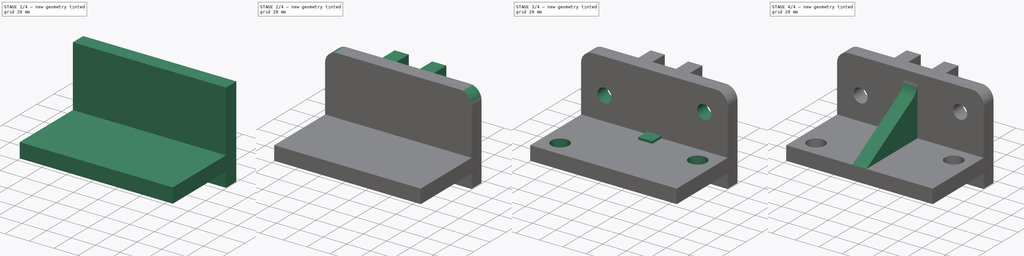
[diagram: build sequence overview — one tinted view per stage of 4, left to right]
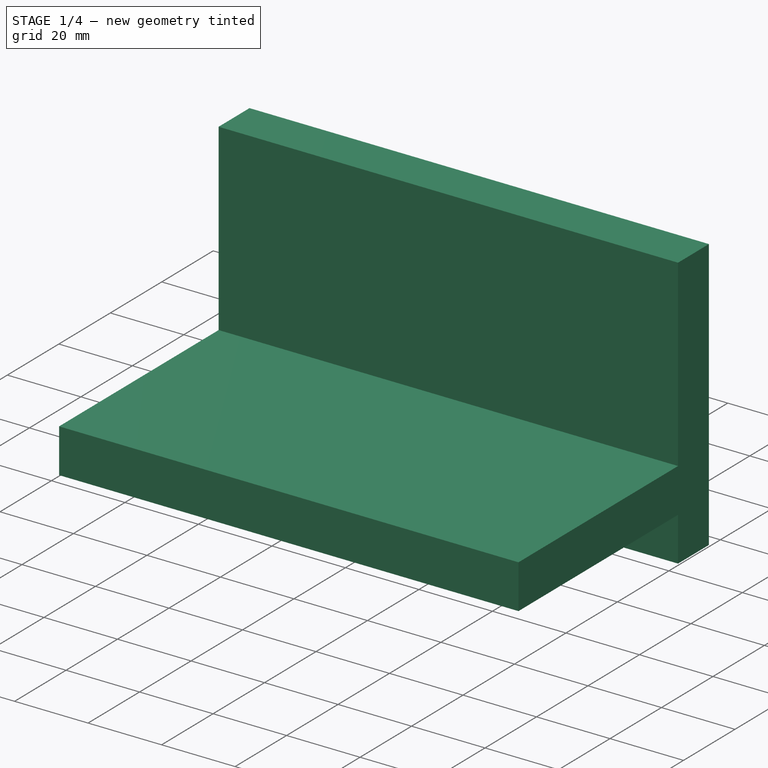
[diagram: stage 1 of 4 — iso view after this stage's code; geometry added in this stage tinted green]
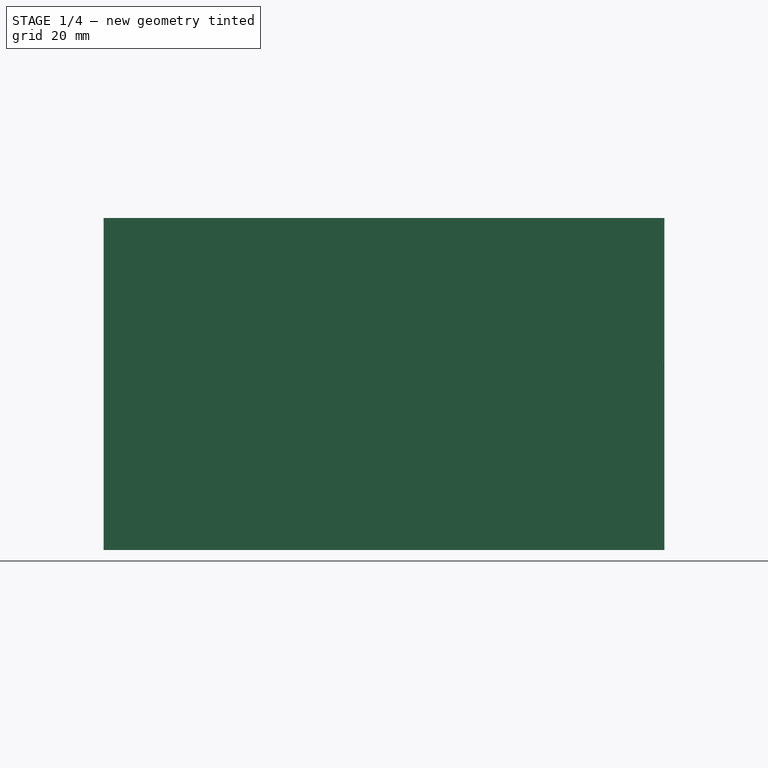
[diagram: stage 1 of 4 — front view after this stage's code; geometry added in this stage tinted green]
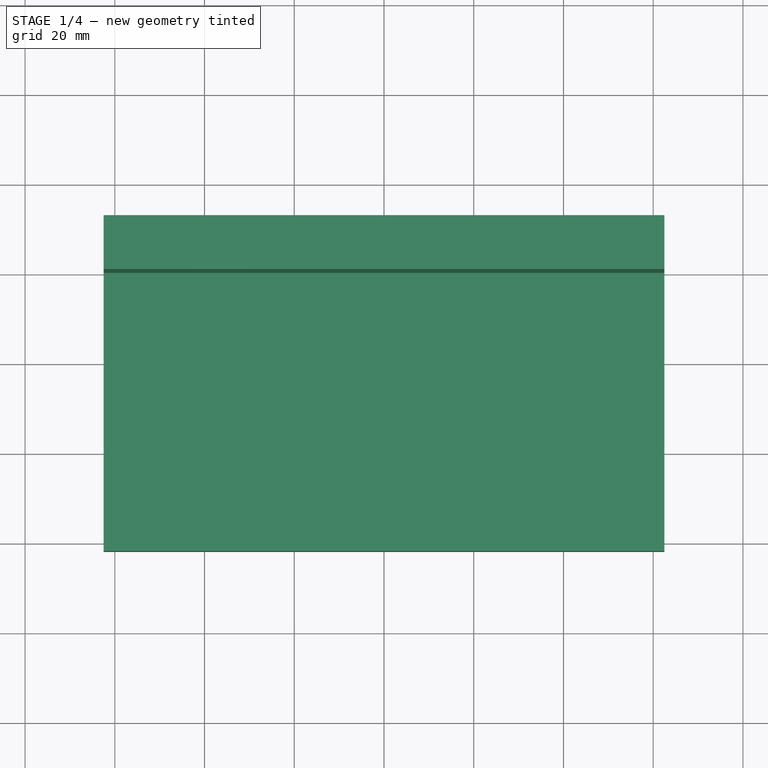
[diagram: stage 1 of 4 — top view after this stage's code; geometry added in this stage tinted green]
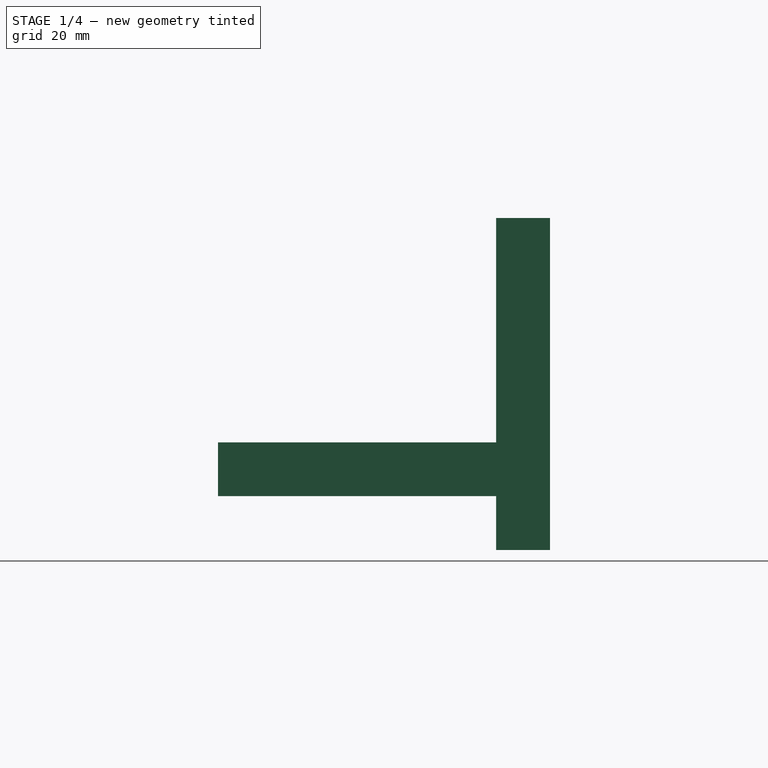
[diagram: stage 1 of 4 — right view after this stage's code; geometry added in this stage tinted green]
FCSTD DOCUMENT  (FreeCAD 0.16R)
Label: Fig 3.34 Final
License: All rights reserved
LicenseURL: http://en.wikipedia.org/wiki/All_rights_reserved
objects: Sketcher::SketchObject×7, PartDesign::Pad×5, PartDesign::Fillet×2, PartDesign::Pocket×2, Part::Feature×1
note: 24 computed .brp shape members not serialized (recipe doc carries the construction recipe); baked Part::Feature solids carry a one-line shape summary decoded from their .brp

FEATURE [Sketcher::SketchObject] Sketch
  Placement = pos=(0,0,0) rot=(-1,0,0;4.71239rad)
  sketch-geometry (4):
    g0: LineSegment StartX=-62.5 StartY=37 StartZ=0 EndX=62.5 EndY=37 EndZ=0
    g1: LineSegment StartX=62.5 StartY=37 StartZ=0 EndX=62.5 EndY=-37 EndZ=0
    g2: LineSegment StartX=62.5 StartY=-37 StartZ=0 EndX=-62.5 EndY=-37 EndZ=0
    g3: LineSegment StartX=-62.5 StartY=-37 StartZ=0 EndX=-62.5 EndY=37 EndZ=0
  constraints (12):
    c: Coincident(g0,g1)
    c: Coincident(g1,g2)
    c: Coincident(g2,g3)
    c: Coincident(g3,g0)
    c: Horizontal(g0)
    c: Horizontal(g2)
    c: Vertical(g1)
    c: Vertical(g3)
    c: DistanceY(g1,g1) = 74
    c: DistanceX(g0,g0) = 125
    c: Symmetric(g2,g1,g-2)
    c: Symmetric(g0,g2,g-1)
FEATURE [PartDesign::Pad] Pad
  Length = 12
  Length2 = 100
  Placement = pos=(0,0,0) rot=(-1,0,0;4.71239rad)
  Reversed = true
  Sketch = -> Sketch
  Type = 0
FEATURE [Sketcher::SketchObject] Sketch001
  ExternalGeometry = -> [Pad]
  Placement = pos=(0,0,0) rot=(1,0,0;1.5708rad)
  Support = -> Pad [Face5]
  sketch-geometry (4):
    g0: LineSegment StartX=-62.5 StartY=-13 StartZ=0 EndX=62.5 EndY=-13 EndZ=0
    g1: LineSegment StartX=62.5 StartY=-13 StartZ=0 EndX=62.5 EndY=-25 EndZ=0
    g2: LineSegment StartX=62.5 StartY=-25 StartZ=0 EndX=-62.5 EndY=-25 EndZ=0
    g3: LineSegment StartX=-62.5 StartY=-25 StartZ=0 EndX=-62.5 EndY=-13 EndZ=0
  constraints (12):
    c: Coincident(g0,g1)
    c: Coincident(g1,g2)
    c: Coincident(g2,g3)
    c: Coincident(g3,g0)
    c: Horizontal(g0)
    c: Horizontal(g2)
    c: Vertical(g1)
    c: Vertical(g3)
    c: PointOnObject(g2,g-5)
    c: PointOnObject(g1,g-4)
    c: DistanceY(g-5,g2) = 12
    c: DistanceY(g2,g0) = 12
FEATURE [PartDesign::Pad] Pad001
  Length = 62
  Length2 = 100
  Placement = pos=(0,0,0) rot=(-1,0,0;4.71239rad)
  Sketch = -> Sketch001
  Type = 0
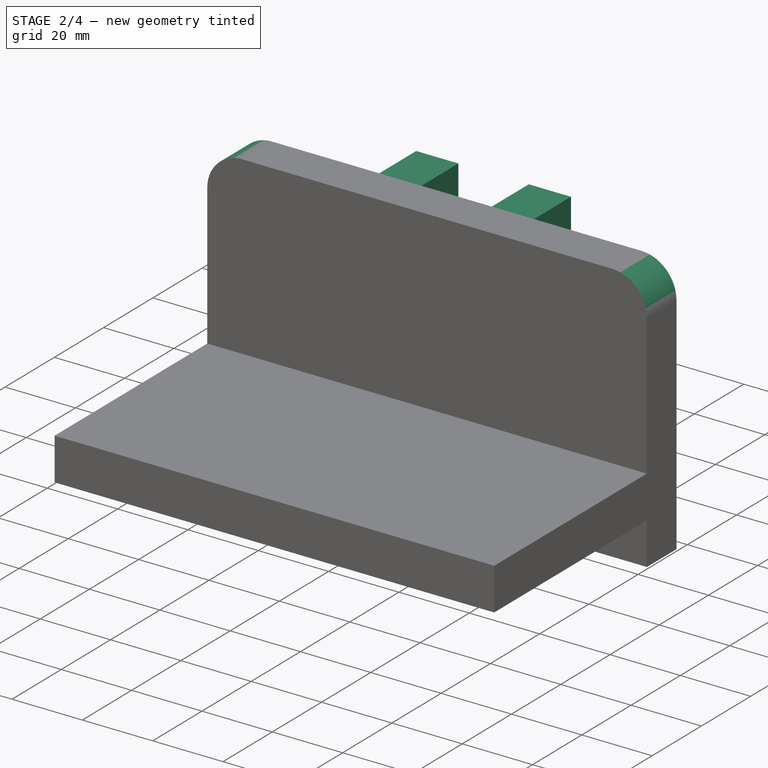
[diagram: stage 2 of 4 — iso view after this stage's code; geometry added in this stage tinted green]
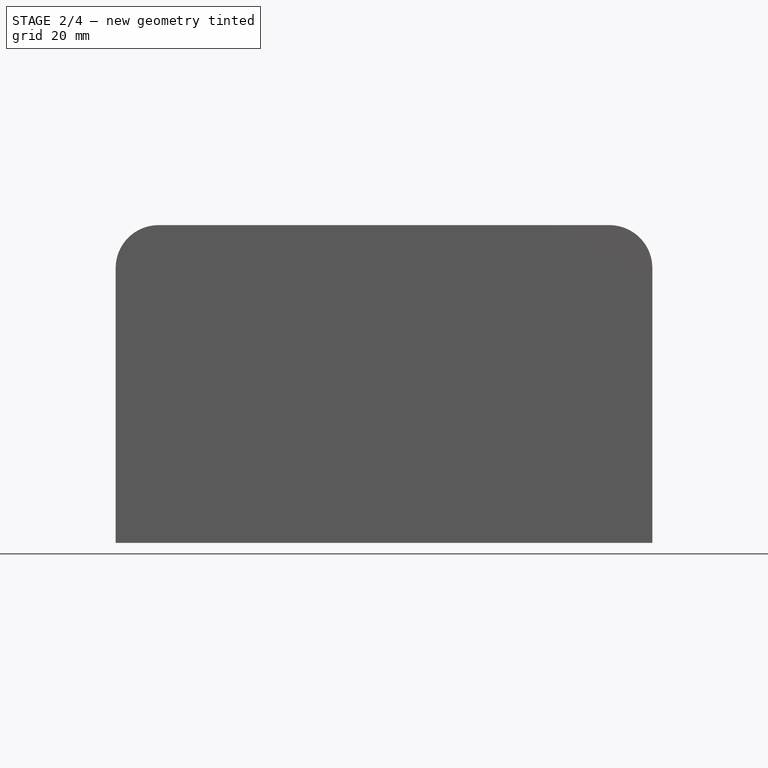
[diagram: stage 2 of 4 — front view after this stage's code; geometry added in this stage tinted green]
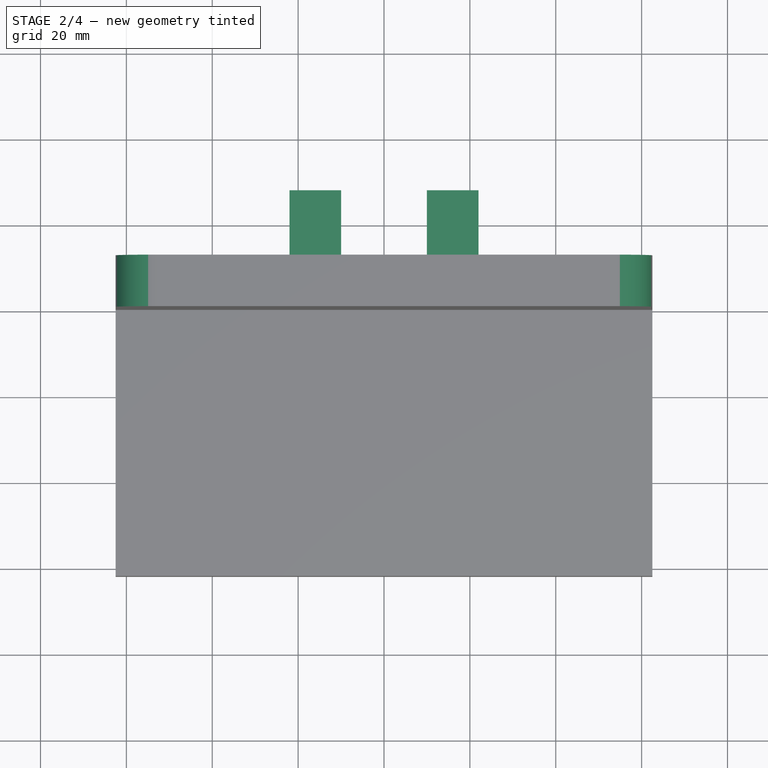
[diagram: stage 2 of 4 — top view after this stage's code; geometry added in this stage tinted green]
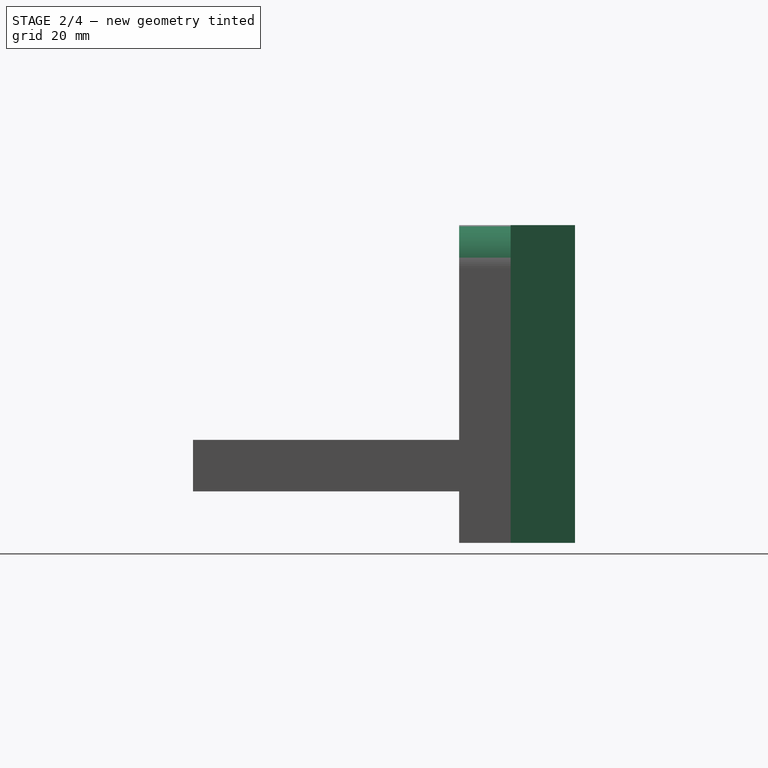
[diagram: stage 2 of 4 — right view after this stage's code; geometry added in this stage tinted green]
FEATURE [PartDesign::Fillet] Fillet
  Base = -> Pad001 [Edge1,Edge2]
  Placement = pos=(0,0,0) rot=(-1,0,0;4.71239rad)
  Radius = 10
FEATURE [Sketcher::SketchObject] Sketch002
  ExternalGeometry = -> [Fillet]
  Placement = pos=(0,12,0) rot=(-1,0,0;1.5708rad)
  Support = -> Fillet [Face5]
  sketch-geometry (8):
    g0: LineSegment StartX=-22 StartY=37 StartZ=0 EndX=-10 EndY=37 EndZ=0
    g1: LineSegment StartX=-10 StartY=37 StartZ=0 EndX=-10 EndY=-37 EndZ=0
    g2: LineSegment StartX=-10 StartY=-37 StartZ=0 EndX=-22 EndY=-37 EndZ=0
    g3: LineSegment StartX=-22 StartY=-37 StartZ=0 EndX=-22 EndY=37 EndZ=0
    g4: LineSegment StartX=10 StartY=37 StartZ=0 EndX=22 EndY=37 EndZ=0
    g5: LineSegment StartX=22 StartY=37 StartZ=0 EndX=22 EndY=-37 EndZ=0
    g6: LineSegment StartX=22 StartY=-37 StartZ=0 EndX=10 EndY=-37 EndZ=0
    g7: LineSegment StartX=10 StartY=-37 StartZ=0 EndX=10 EndY=37 EndZ=0
  constraints (24):
    c: Coincident(g0,g1)
    c: Coincident(g1,g2)
    c: Coincident(g2,g3)
    c: Coincident(g3,g0)
    c: Horizontal(g0)
    c: Horizontal(g2)
    c: Vertical(g1)
    c: Vertical(g3)
    c: Coincident(g4,g5)
    c: Coincident(g5,g6)
    c: Coincident(g6,g7)
    c: Coincident(g7,g4)
    c: Horizontal(g4)
    c: Horizontal(g6)
    c: Vertical(g5)
    c: Vertical(g7)
    c: PointOnObject(g2,g-4)
    c: PointOnObject(g6,g-4)
    c: PointOnObject(g0,g-3)
    c: PointOnObject(g4,g-3)
    c: DistanceX(g0,g0) = 12
    c: DistanceX(g4,g4) = 12
    c: DistanceX(g0,g4) = 20
    c: Symmetric(g1,g6,g-2)
FEATURE [PartDesign::Pad] Pad002
  Length = 15
  Length2 = 100
  Placement = pos=(0,0,0) rot=(-1,0,0;4.71239rad)
  Sketch = -> Sketch002
  Type = 0
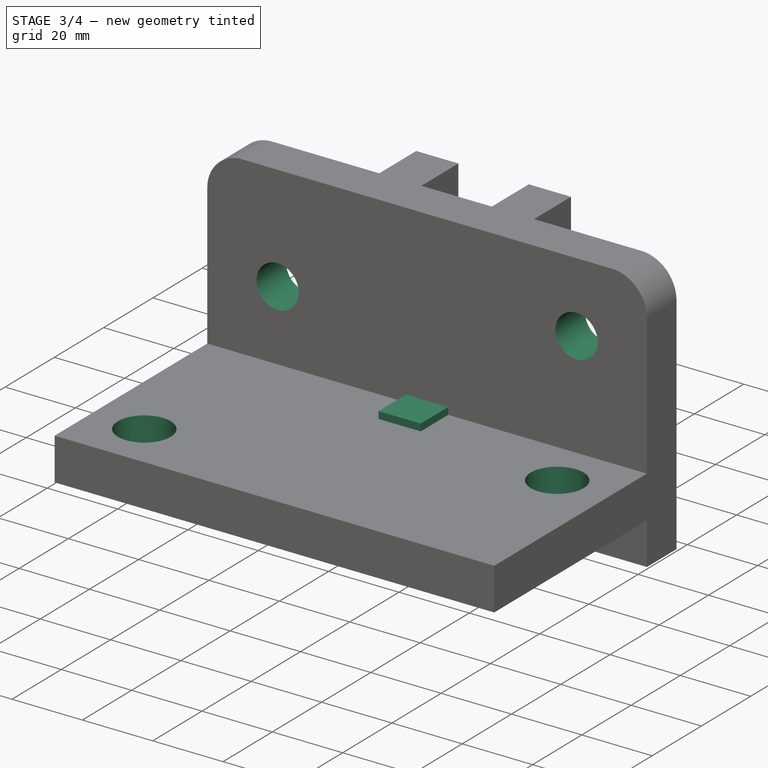
[diagram: stage 3 of 4 — iso view after this stage's code; geometry added in this stage tinted green]
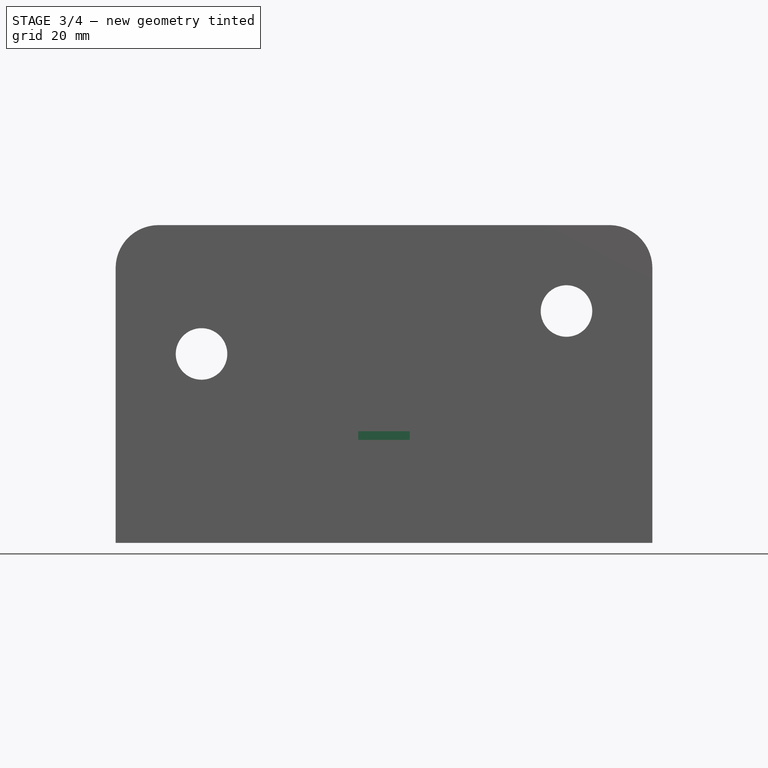
[diagram: stage 3 of 4 — front view after this stage's code; geometry added in this stage tinted green]
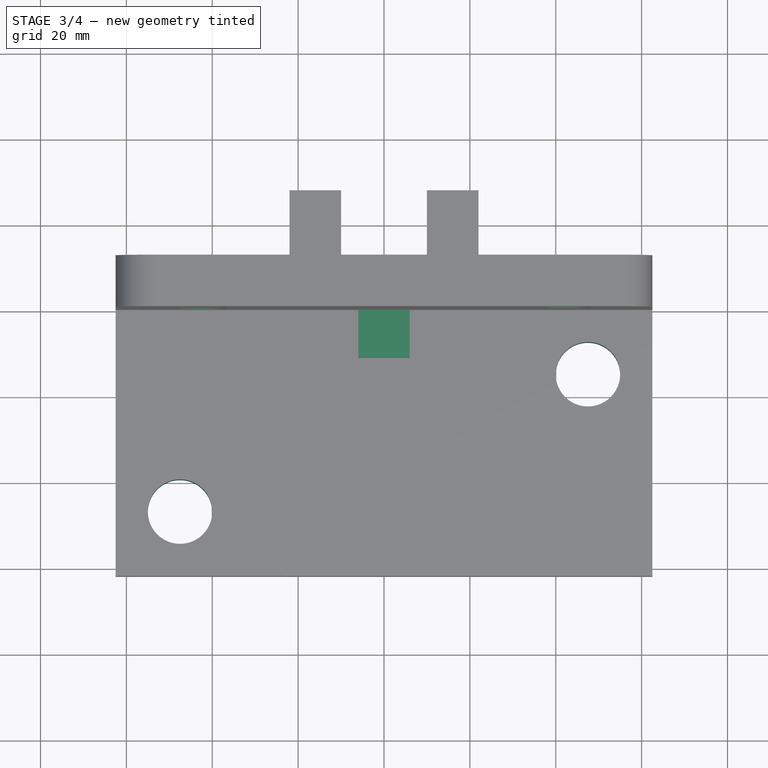
[diagram: stage 3 of 4 — top view after this stage's code; geometry added in this stage tinted green]
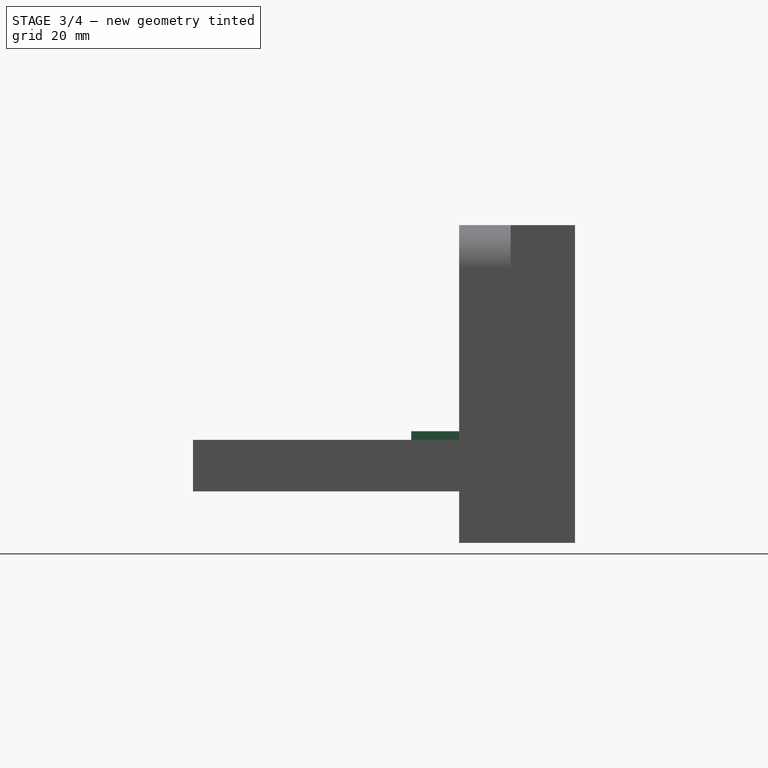
[diagram: stage 3 of 4 — right view after this stage's code; geometry added in this stage tinted green]
FEATURE [Sketcher::SketchObject] Sketch003
  ExternalGeometry = -> [Pad002]
  Placement = pos=(0,0,-13) rot=(0,0,1;3.14159rad)
  Support = -> Pad002 [Face9]
  sketch-geometry (2):
    g0: Circle CenterX=-47.5 CenterY=15 CenterZ=0 NormalX=0 NormalY=0 NormalZ=1 Radius=7.5
    g1: Circle CenterX=47.5 CenterY=47 CenterZ=0 NormalX=0 NormalY=0 NormalZ=1 Radius=7.5
  constraints (6):
    c: Radius(g0) = 7.5
    c: Equal(g0,g1)
    c: DistanceX(g1,g-3) = 15
    c: DistanceY(g1,g-3) = 15
    c: DistanceX(g-3,g0) = 15
    c: DistanceY(g-4,g0) = 15
FEATURE [PartDesign::Pocket] Pocket
  Length = 5
  Placement = pos=(0,0,0) rot=(-1,0,0;4.71239rad)
  Sketch = -> Sketch003
  Type = 1
FEATURE [Sketcher::SketchObject] Sketch004
  ExternalGeometry = -> [Pocket]
  Placement = pos=(0,0,0) rot=(1,0,0;1.5708rad)
  Support = -> Pocket [Face6]
  sketch-geometry (2):
    g0: Circle CenterX=-42.5 CenterY=7 CenterZ=0 NormalX=0 NormalY=0 NormalZ=1 Radius=6
    g1: Circle CenterX=42.5 CenterY=17 CenterZ=0 NormalX=0 NormalY=0 NormalZ=1 Radius=6
  constraints (6):
    c: DistanceY(g0,g-5) = 30
    c: DistanceX(g-4,g0) = 20
    c: Radius(g0) = 6
    c: DistanceY(g-3,g1) = 30
    c: DistanceX(g1,g-3) = 20
    c: Radius(g1) = 6
FEATURE [PartDesign::Pocket] Pocket001
  Length = 5
  Placement = pos=(0,0,0) rot=(-1,0,0;4.71239rad)
  Sketch = -> Sketch004
  Type = 1
FEATURE [Sketcher::SketchObject] Sketch005
  Placement = pos=(0,0,-13) rot=(0,0,1;3.14159rad)
  Support = -> Pocket001 [Face18]
  sketch-geometry (4):
    g0: LineSegment StartX=-6 StartY=11.1489 StartZ=0 EndX=6 EndY=11.1489 EndZ=0
    g1: LineSegment StartX=6 StartY=11.1489 StartZ=0 EndX=6 EndY=0 EndZ=0
    g2: LineSegment StartX=6 StartY=0 StartZ=0 EndX=-6 EndY=0 EndZ=0
    g3: LineSegment StartX=-6 StartY=0 StartZ=0 EndX=-6 EndY=11.1489 EndZ=0
  constraints (11):
    c: Coincident(g0,g1)
    c: Coincident(g1,g2)
    c: Coincident(g2,g3)
    c: Coincident(g3,g0)
    c: Horizontal(g0)
    c: Horizontal(g2)
    c: Vertical(g1)
    c: Vertical(g3)
    c: PointOnObject(g1,g-1)
    c: DistanceX(g0,g0) = 12
    c: Symmetric(g0,g0,g-2)
FEATURE [PartDesign::Pad] Pad003
  Length = 2
  Length2 = 100
  Placement = pos=(0,0,0) rot=(-1,0,0;4.71239rad)
  Sketch = -> Sketch005
  Type = 0
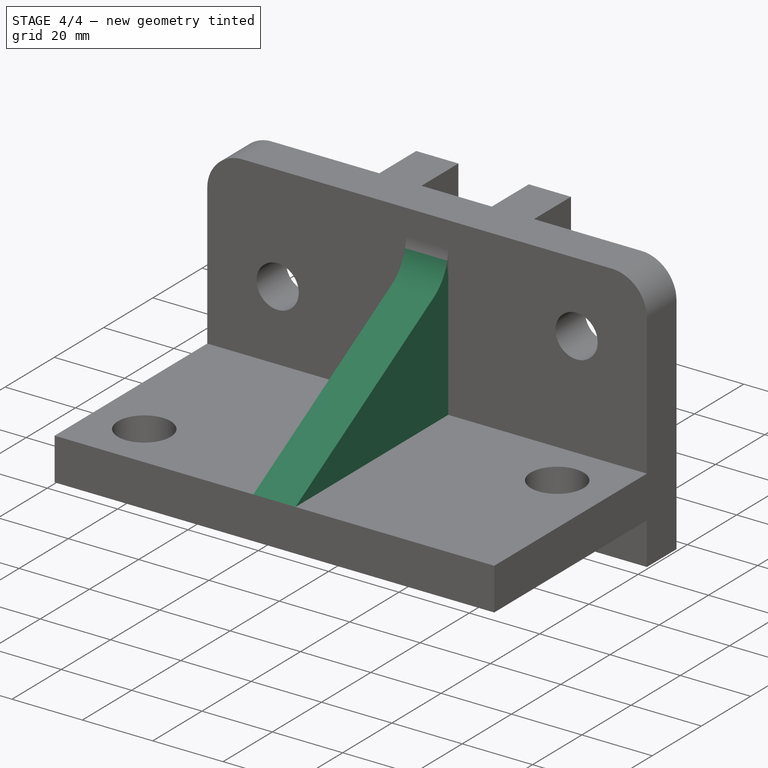
[diagram: stage 4 of 4 — iso view after this stage's code; geometry added in this stage tinted green]
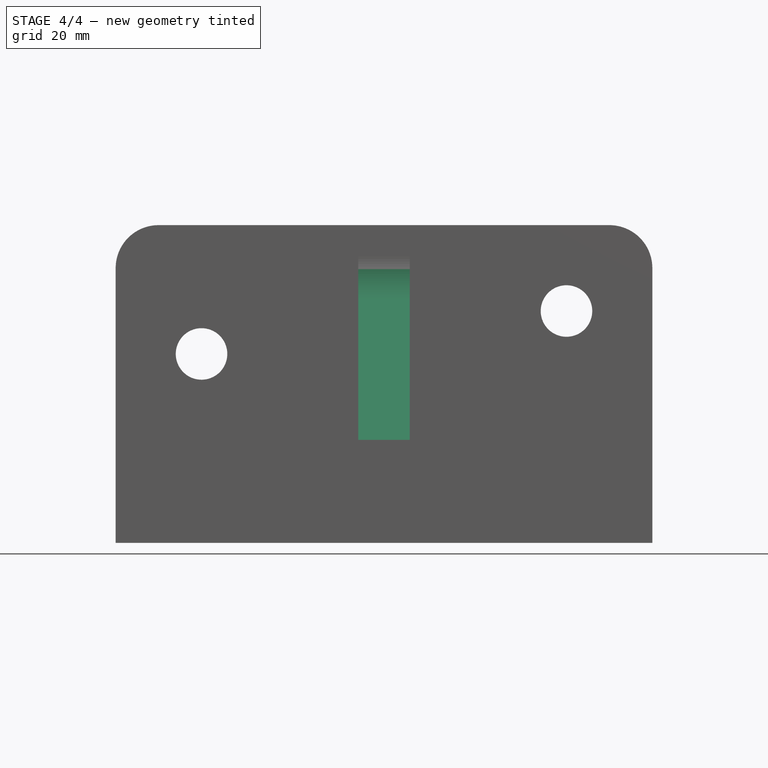
[diagram: stage 4 of 4 — front view after this stage's code; geometry added in this stage tinted green]
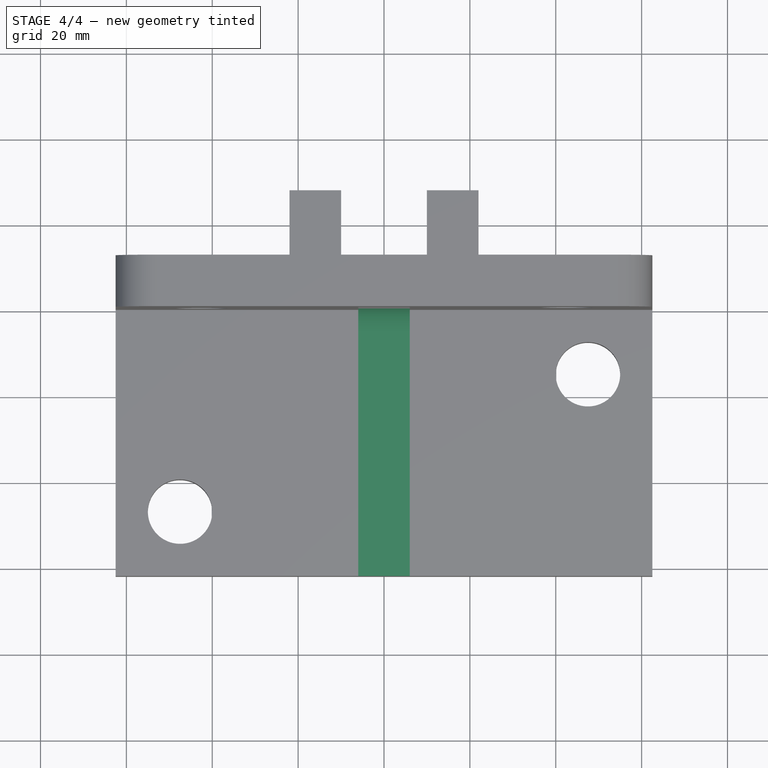
[diagram: stage 4 of 4 — top view after this stage's code; geometry added in this stage tinted green]
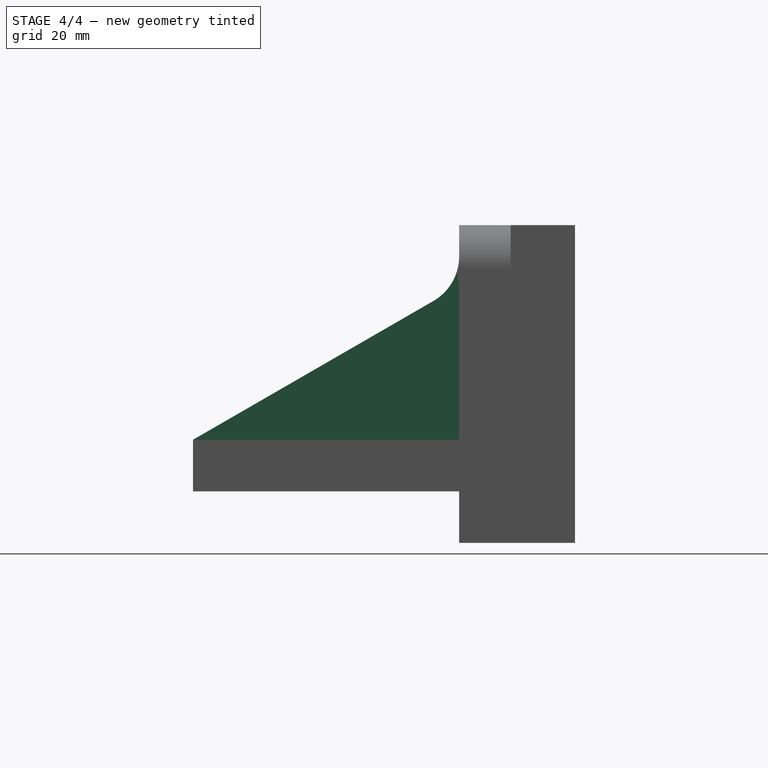
[diagram: stage 4 of 4 — right view after this stage's code; geometry added in this stage tinted green]
FEATURE [Sketcher::SketchObject] Sketch006
  ExternalGeometry = -> [Pad003]
  Placement = pos=(6,0,0) rot=(0.707107,0,0.707107;3.14159rad)
  Support = -> Pad003 [Face19]
  sketch-geometry (3):
    g0: LineSegment StartX=-13 StartY=62 StartZ=0 EndX=-13 EndY=0 EndZ=0
    g1: LineSegment StartX=-13 StartY=0 StartZ=0 EndX=22.7957 EndY=0 EndZ=0
    g2: LineSegment StartX=22.7957 StartY=0 StartZ=0 EndX=-13 EndY=62 EndZ=0
  constraints (8):
    c: Vertical(g0)
    c: Coincident(g0,g1)
    c: Coincident(g1,g2)
    c: Coincident(g2,g0)
    c: Coincident(g0,g-3)
    c: PointOnObject(g0,g-1)
    c: Angle(g0,g2) = 0.523599
    c: PointOnObject(g1,g-1)
FEATURE [PartDesign::Pad] Pad004
  Length = 12
  Length2 = 100
  Placement = pos=(0,0,0) rot=(-1,0,0;4.71239rad)
  Reversed = true
  Sketch = -> Sketch006
  Type = 0
FEATURE [PartDesign::Fillet] Fillet001
  Base = -> Pad004 [Edge33]
  Placement = pos=(0,0,0) rot=(-1,0,0;4.71239rad)
  Radius = 12
FEATURE [Part::Feature] Fillet001001  label="Fillet002"
  shape: bbox 125 x 89 x 74 mm, 29 faces (baked)
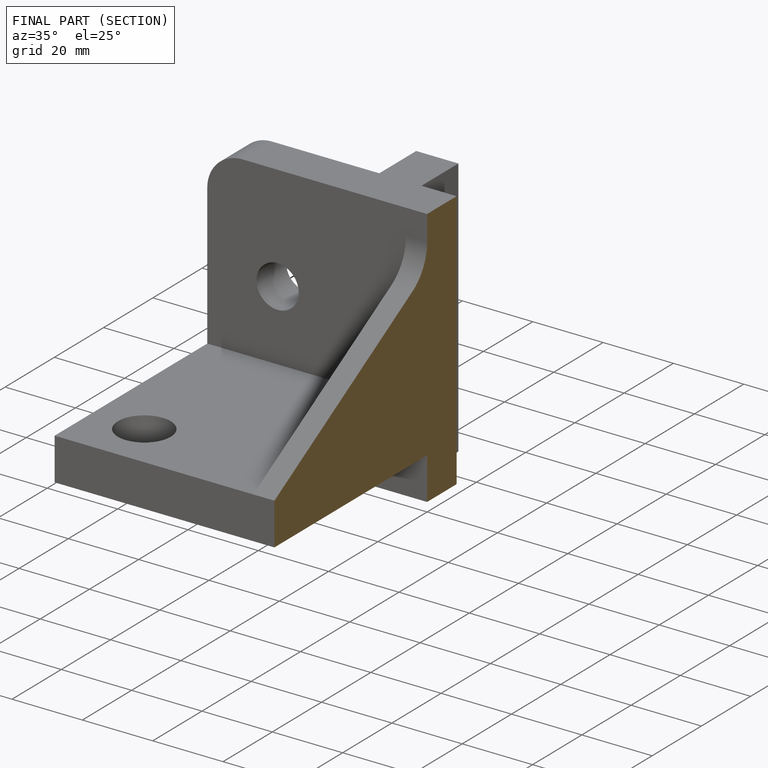
[diagram: finished part — half-section view (interior)]
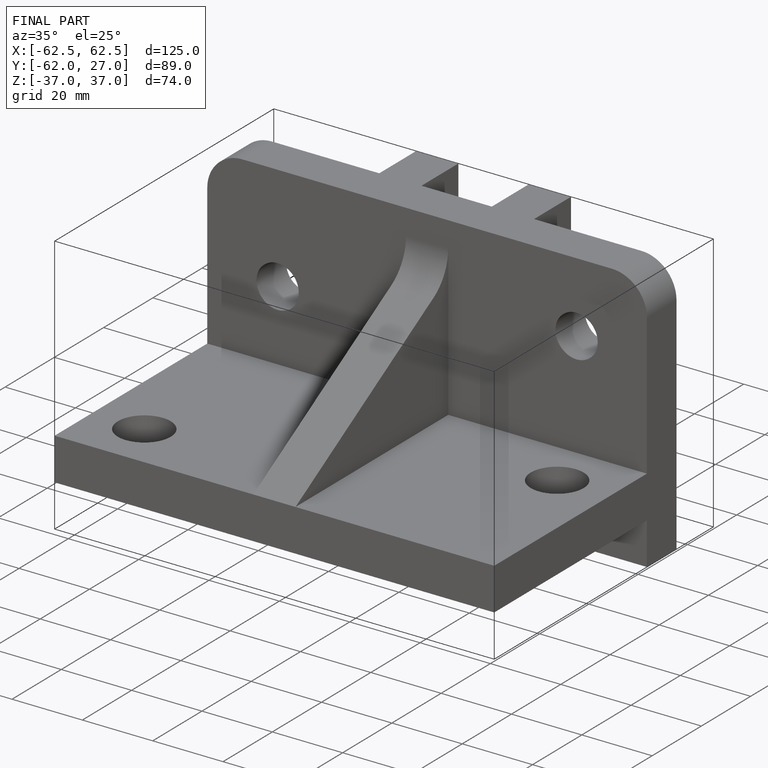
[diagram: finished part — iso view with bounding-box wireframe]
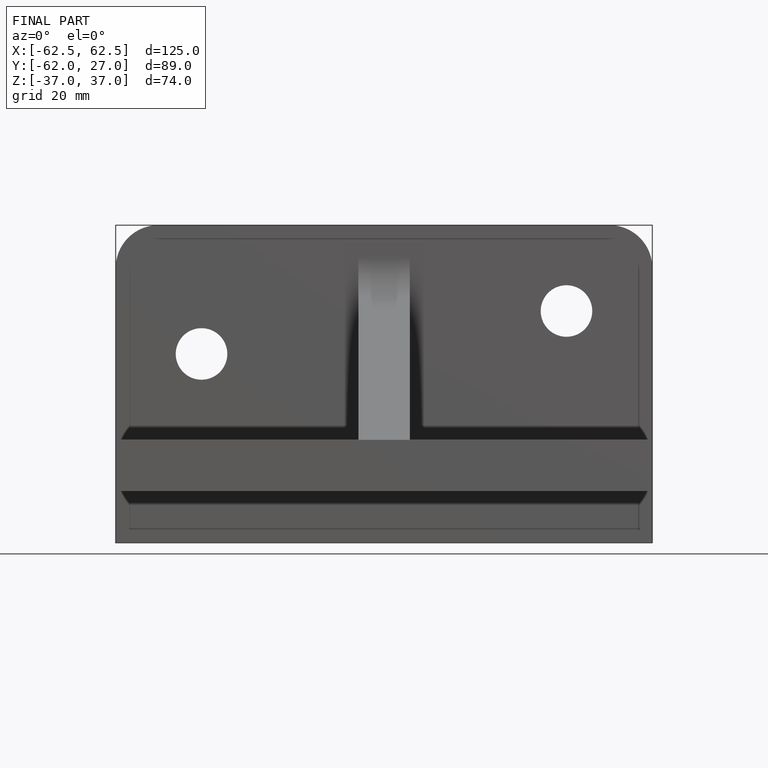
[diagram: finished part — front view with bounding-box wireframe]
